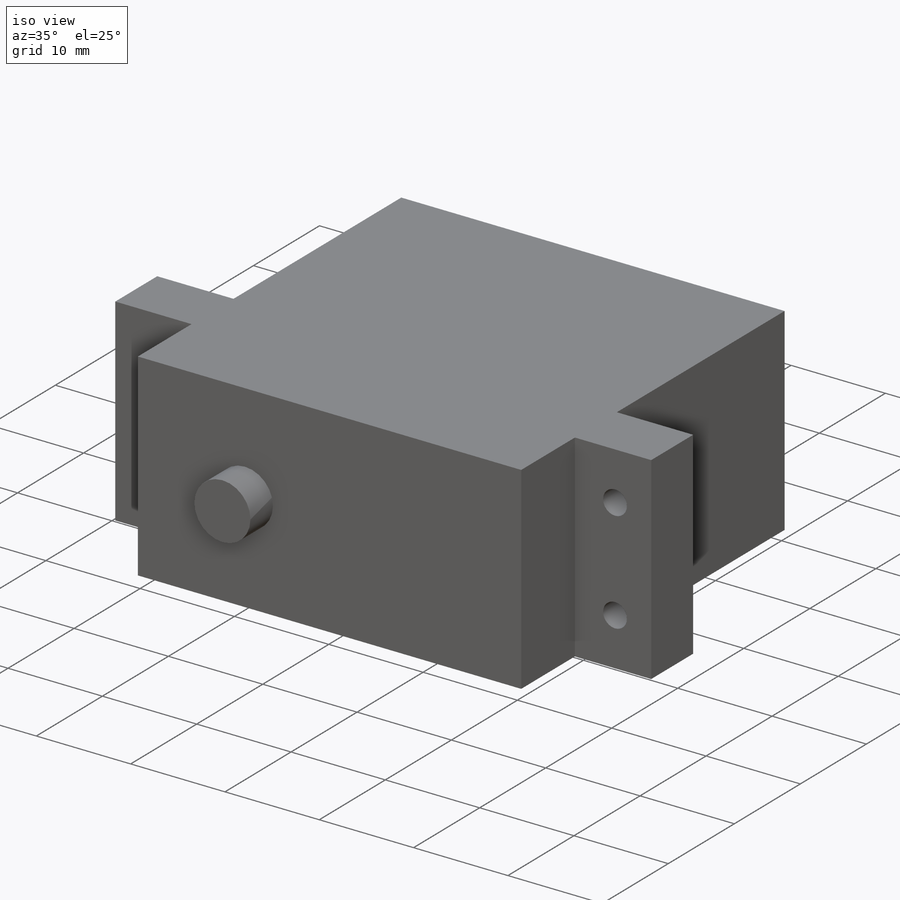
[diagram: iso view]
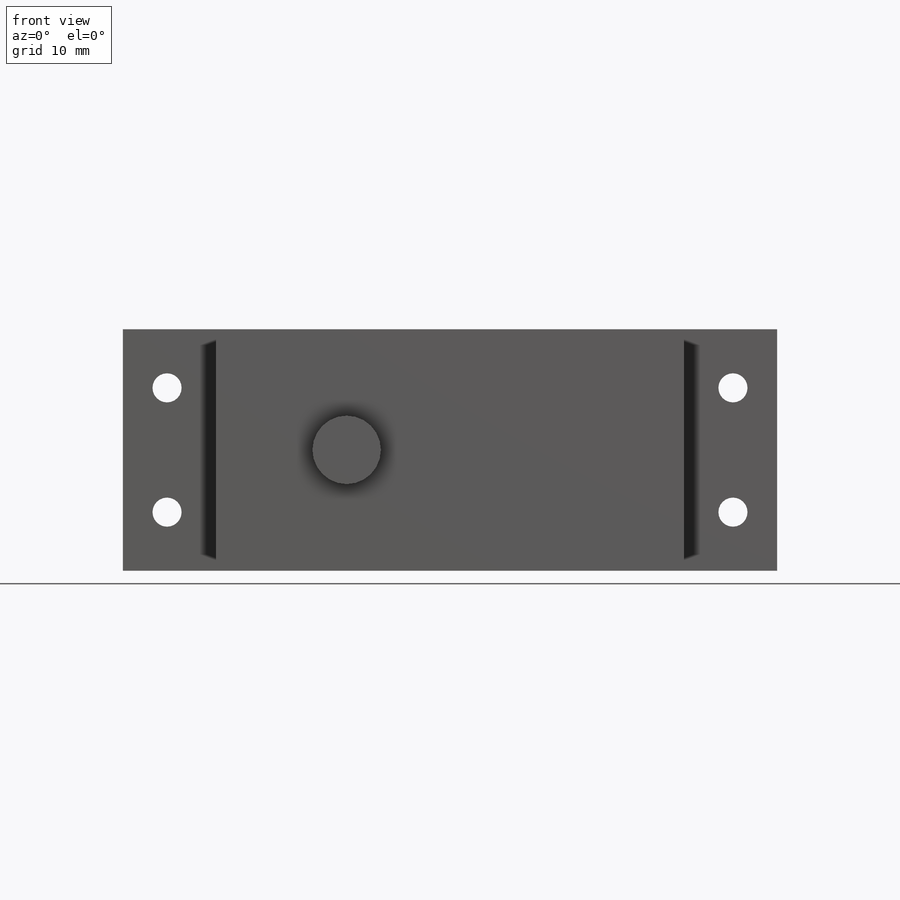
[diagram: front view]
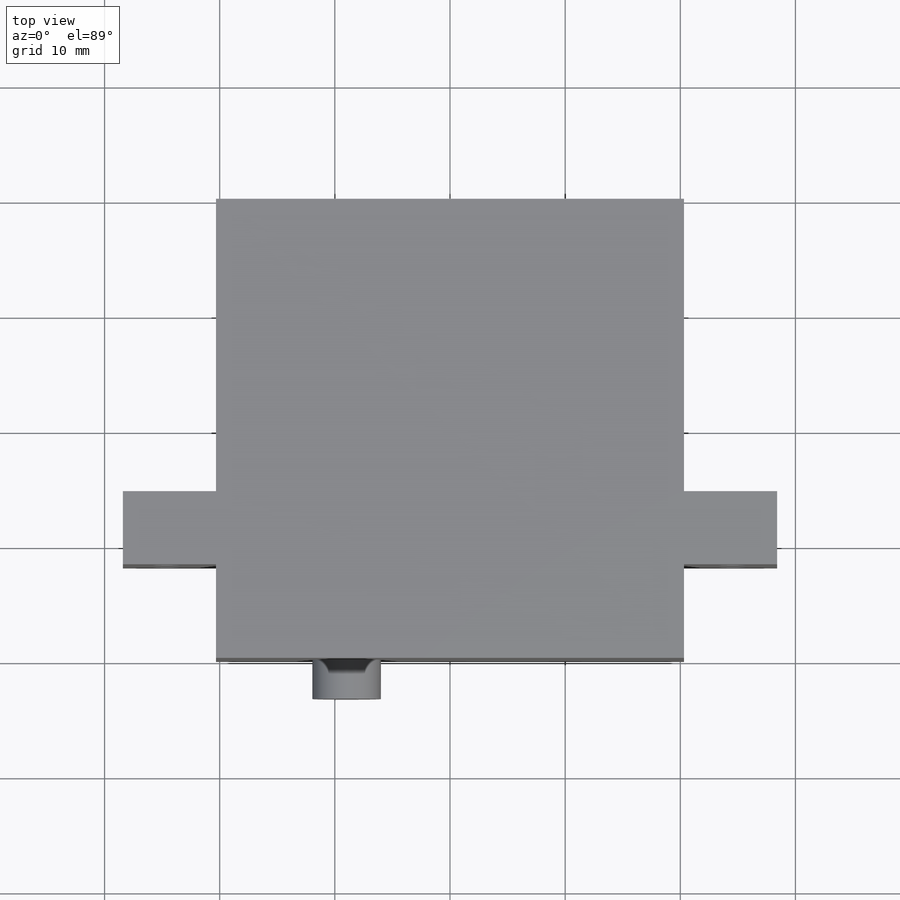
[diagram: top view]
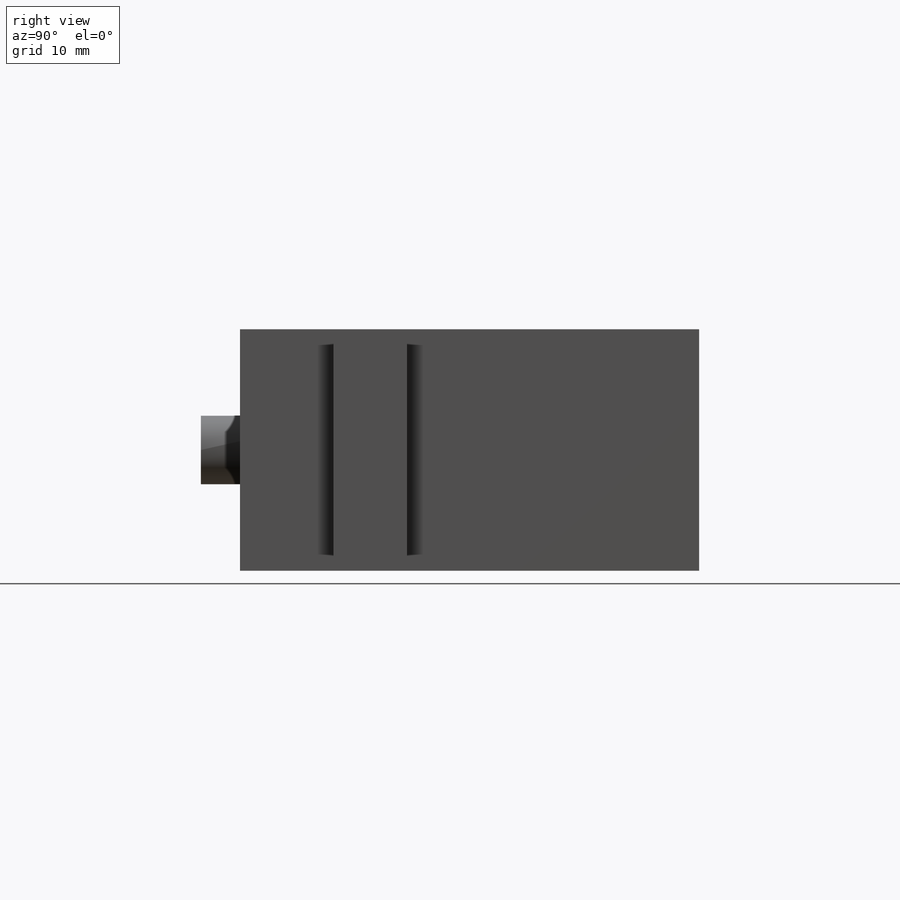
[diagram: right view]
SOLIDWORKS PART (.sldprt)
format: sldprt  version: not decoded by parser v0  size: 259,584 bytes
history: native  units: mm
features: sketch x7, cut_extrude x3, material x1, extrude x1, hole x1 (+12 scaffold rows collapsed)
feature tree (25):
  scaffold x12  (default folders/planes/origin — collapsed)
  material  "Material <not specified>"
  sketch  "Sketch1"  dims[D1=20.9804mm]
  extrude  "Extrude1"  Depth=43.2816mm
  sketch  "Sketch3"  dims[D1=19.431mm]
  cut_extrude  "Extrude2"  Depth=3.4036mm
  sketch  "Sketch11"  dims[D1=49.149mm]
  sketch  "Sketch8"  dims[D1=7.62mm]
  cut_extrude  "Extrude5"  Depth=25.4mm
  hole  "#39 (0.0995) Diameter Hole1"  Diameter=2.5273mm Depth=39.878mm
  sketch  "3DSketch1"
  sketch  "Sketch12"  dims[hole-wizard template sketch: 59 standard entries collapsed; hole parameters kept: c18.Thru Hole Dia.=2.5273mm c18.Thru Hole Depth=39.878mm]
  sketch  "Sketch13"  dims[D1=7.62mm]
  cut_extrude  "Extrude6"  Depth=8.128mm
decode coverage: 11 of 12 modeling features carry decoded parameters
note: ~ marks probable driven/reference dimensions
note: suppression state not decoded; provenance and decode notes live in map.json
